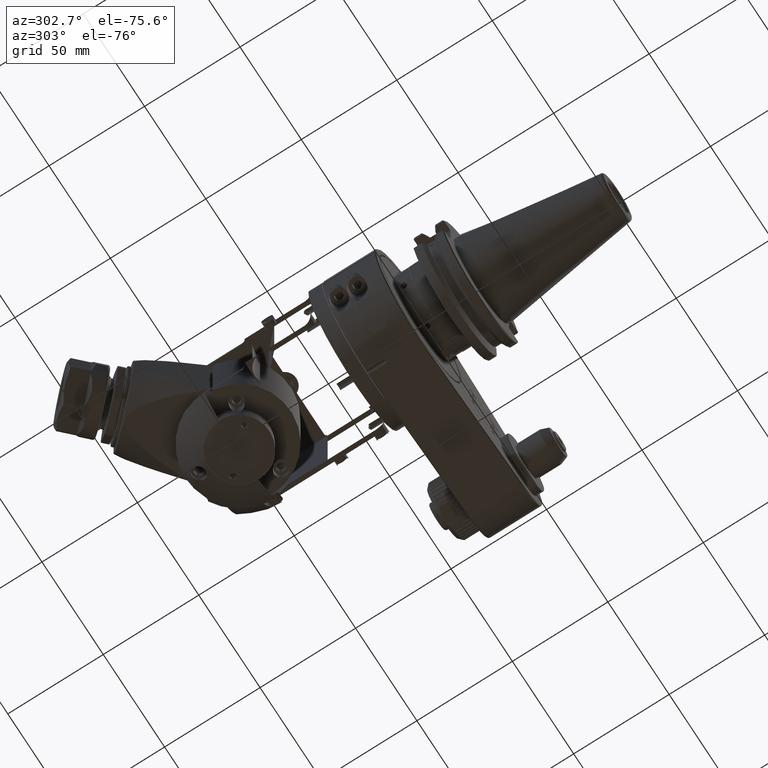
[diagram: clean part render]
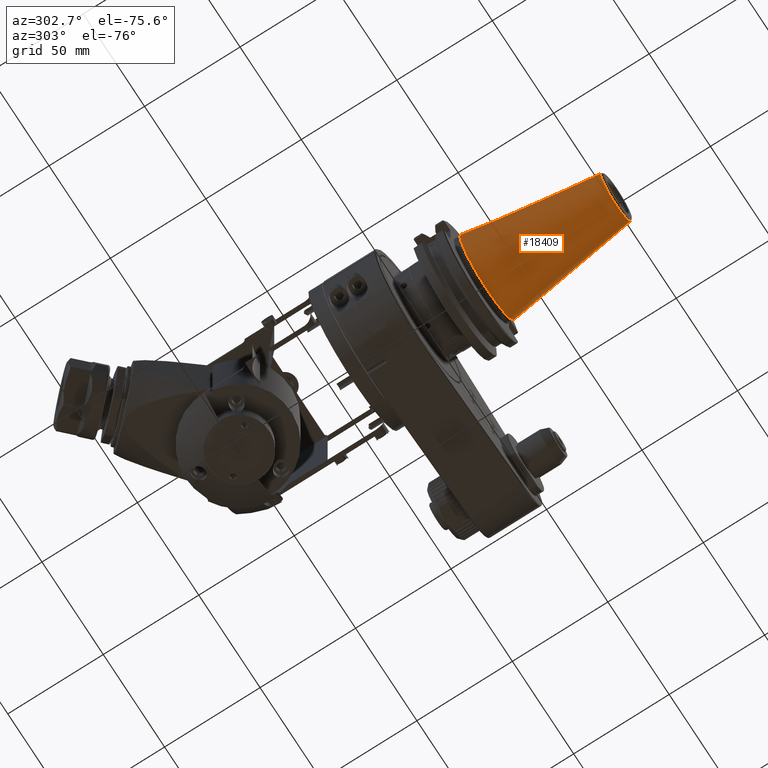
[diagram: same view with one face highlighted and labeled with its STEP entity id]
A machine part, auxiliary view. The second image highlights one B-rep face of the part: STEP entity #18409.
In plain terms, the highlighted conical surface has half-angle 8.3 deg.
Its self-contained STEP definition (entity closure, byte-faithful):
#454=CONICAL_SURFACE('',#20624,17.31065452764,0.144862327915529);
#2081=FACE_OUTER_BOUND('',#3297,.T.);
#3297=EDGE_LOOP('',(#16906,#16907,#16908,#16909,#16910,#16911));
#4390=CIRCLE('',#20622,22.225);
#4391=CIRCLE('',#20623,22.225);
#4392=CIRCLE('',#20625,12.39630905528);
#4393=CIRCLE('',#20626,12.39630905528);
#5694=LINE('',#37178,#6987);
#6987=VECTOR('',#26107,17.31065452764);
#8955=VERTEX_POINT('',#37171);
#8956=VERTEX_POINT('',#37172);
#8957=VERTEX_POINT('',#37177);
#8958=VERTEX_POINT('',#37179);
#11629=EDGE_CURVE('',#8955,#8956,#4390,.T.);
#11630=EDGE_CURVE('',#8956,#8955,#4391,.T.);
#11632=EDGE_CURVE('',#8955,#8957,#5694,.T.);
#11633=EDGE_CURVE('',#8958,#8957,#4392,.T.);
#11634=EDGE_CURVE('',#8957,#8958,#4393,.T.);
#16906=ORIENTED_EDGE('',*,*,#11629,.T.);
#16907=ORIENTED_EDGE('',*,*,#11630,.T.);
#16908=ORIENTED_EDGE('',*,*,#11632,.T.);
#16909=ORIENTED_EDGE('',*,*,#11633,.F.);
#16910=ORIENTED_EDGE('',*,*,#11634,.F.);
#16911=ORIENTED_EDGE('',*,*,#11632,.F.);
#18409=ADVANCED_FACE('',(#2081),#454,.T.);
#20622=AXIS2_PLACEMENT_3D('',#37173,#26100,#26101);
#20623=AXIS2_PLACEMENT_3D('',#37174,#26102,#26103);
#20624=AXIS2_PLACEMENT_3D('',#37176,#26105,#26106);
#20625=AXIS2_PLACEMENT_3D('',#37180,#26108,#26109);
#20626=AXIS2_PLACEMENT_3D('',#37181,#26110,#26111);
#26100=DIRECTION('center_axis',(0.,-1.,0.));
#26101=DIRECTION('ref_axis',(-1.,0.,0.));
#26102=DIRECTION('center_axis',(0.,-1.,0.));
#26103=DIRECTION('ref_axis',(-1.,0.,0.));
#26105=DIRECTION('center_axis',(0.,1.,0.));
#26106=DIRECTION('ref_axis',(1.,0.,0.));
#26107=DIRECTION('',(0.144356201000973,-0.989525789068969,-1.76785359492914E-17));
#26108=DIRECTION('center_axis',(0.,-1.,0.));
#26109=DIRECTION('ref_axis',(1.,0.,0.));
#26110=DIRECTION('center_axis',(0.,-1.,0.));
#26111=DIRECTION('ref_axis',(1.,0.,0.));
#37171=CARTESIAN_POINT('',(-22.225,-63.,0.));
#37172=CARTESIAN_POINT('',(22.225,-63.,2.72177751110499E-15));
#37173=CARTESIAN_POINT('Origin',(0.,-63.,0.));
#37174=CARTESIAN_POINT('Origin',(0.,-63.,0.));
#37176=CARTESIAN_POINT('Origin',(2.343287799964E-14,-96.6866137206,0.));
#37177=CARTESIAN_POINT('',(-12.39630905528,-130.3732274412,0.));
#37178=CARTESIAN_POINT('',(-17.31065452764,-96.6866137206,2.119943765842E-15));
#37179=CARTESIAN_POINT('',(-12.3942248567976,-130.3732274412,0.227306826023077));
#37180=CARTESIAN_POINT('Origin',(2.549558818299E-14,-130.3732274412,0.));
#37181=CARTESIAN_POINT('Origin',(2.549558818299E-14,-130.3732274412,0.));